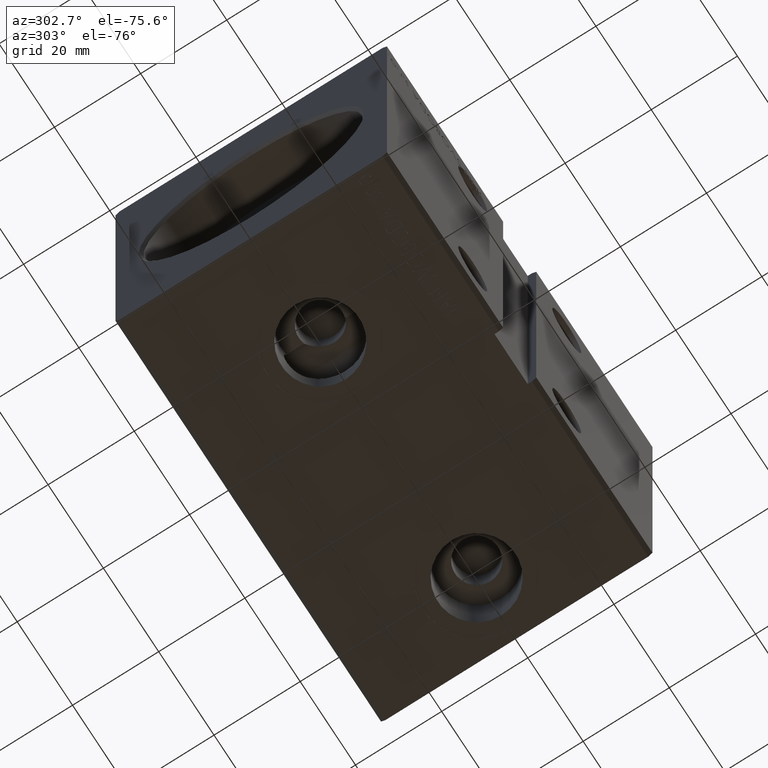
[diagram: clean part render]
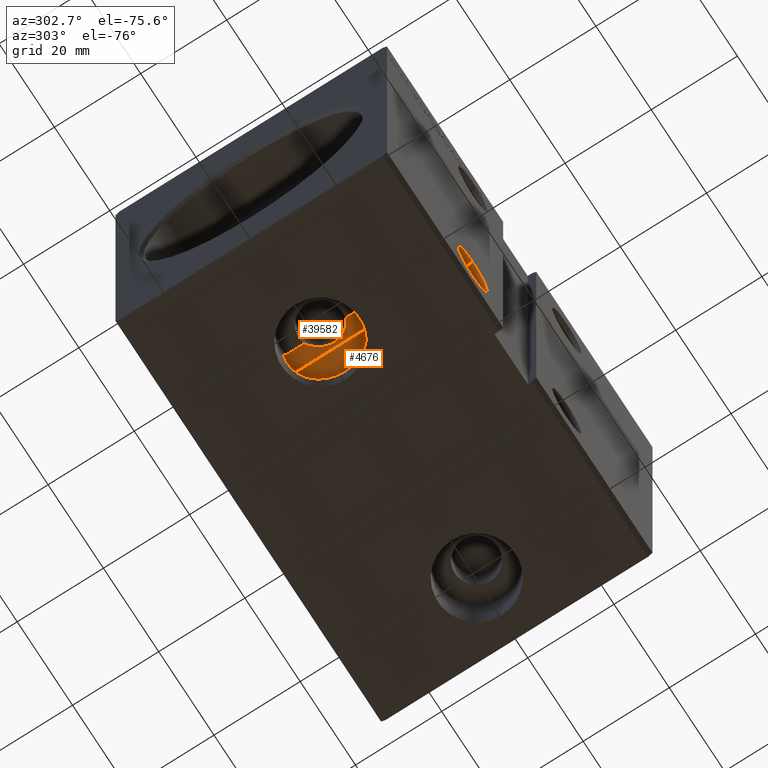
[diagram: same view with one multi-face feature highlighted, each face labeled with its STEP entity id]
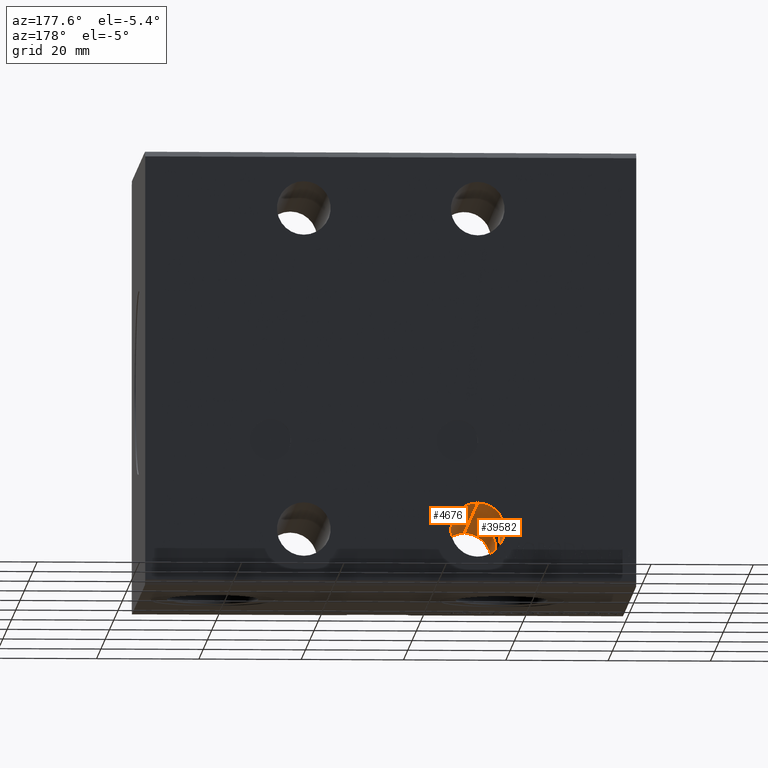
[diagram: same view with one multi-face feature highlighted, each face labeled with its STEP entity id]
A machine part, auxiliary view. The highlighted faces form ONE feature: a constant-radius fillet chain: 2 tangent blend faces with common blend radius 5.25 mm. The faces share edges in the B-rep.
A second angle (auxiliary view) of the same feature is appended — it is thin or edge-on in the first view.
Their STEP definitions:
[1] entity #39582 (Cylinder):
#107 = CARTESIAN_POINT ( 'NONE',  ( 30.01923076923077005, 31.50000000000002842, -36.65757614737546533 ) ) ;
#438 = DIRECTION ( 'NONE',  ( 0.000000000000000000, 0.000000000000000000, 1.000000000000000000 ) ) ;
#533 = CARTESIAN_POINT ( 'NONE',  ( 31.00000000000000000, 31.50000000000002842, -36.75000000000000000 ) ) ;
#827 = CARTESIAN_POINT ( 'NONE',  ( 25.89996466578583068, -8.955161705851407916, -32.76919166794407801 ) ) ;
#1039 = CARTESIAN_POINT ( 'NONE',  ( 31.00000000000000355, -6.708203932499375632, -36.75000000000000000 ) ) ;
#1185 = EDGE_CURVE ( 'NONE', #40813, #38240, #5986, .T. ) ;
#1246 = CARTESIAN_POINT ( 'NONE',  ( 25.74722821237686787, -8.968927506611988676, -31.32945938997362845 ) ) ;
#1340 = CARTESIAN_POINT ( 'NONE',  ( 28.41882955459709237, -3.651150385358644446, -26.92696919744126305 ) ) ;
#1448 = CARTESIAN_POINT ( 'NONE',  ( 26.07193313090176190, -8.936447640893442568, -29.67364151117363846 ) ) ;
#1472 = CARTESIAN_POINT ( 'NONE',  ( 29.05818824000350276, 31.50000000000002842, -36.37769075370089666 ) ) ;
#1490 = VERTEX_POINT ( 'NONE', #32534 ) ;
#1555 = EDGE_CURVE ( 'NONE', #39764, #33113, #7179, .T. ) ;
#1621 = VECTOR ( 'NONE', #7904, 1000.000000000000000 ) ;
#1668 = CARTESIAN_POINT ( 'NONE',  ( 30.24930895320776969, -7.325898449108809274, -36.71209383333225418 ) ) ;
#1691 = CARTESIAN_POINT ( 'NONE',  ( 31.00000000000000000, -31.50000000000000000, -36.75000000000000711 ) ) ;
#1983 = CARTESIAN_POINT ( 'NONE',  ( 29.15896175583688432, -2.790872282961959883, -26.58087485951287476 ) ) ;
#2068 = VERTEX_POINT ( 'NONE', #1472 ) ;
#2123 = VERTEX_POINT ( 'NONE', #4680 ) ;
#2443 = CARTESIAN_POINT ( 'NONE',  ( 29.15698368089221049, 2.782179957065887166, -26.58329660562357688 ) ) ;
#2588 = VERTEX_POINT ( 'NONE', #15891 ) ;
#2793 = EDGE_CURVE ( 'NONE', #38202, #3186, #3978, .T. ) ;
#2833 = CARTESIAN_POINT ( 'NONE',  ( 25.74743895749521272, 8.968909844459643566, -31.32312102305840540 ) ) ;
#2923 = VERTEX_POINT ( 'NONE', #31692 ) ;
#3047 = CARTESIAN_POINT ( 'NONE',  ( 30.99999999999999645, 6.708203932499371192, -36.75000000000000000 ) ) ;
#3166 = EDGE_CURVE ( 'NONE', #39764, #40813, #33349, .T. ) ;
#3186 = VERTEX_POINT ( 'NONE', #9635 ) ;
#3206 = CARTESIAN_POINT ( 'NONE',  ( 26.49750069405890684, 8.874541772468765188, -28.80000000000000782 ) ) ;
#3444 = VERTEX_POINT ( 'NONE', #34092 ) ;
#3630 = CARTESIAN_POINT ( 'NONE',  ( 31.00000000000000355, -6.708203932499375632, -36.75000000000000000 ) ) ;
#3670 = CARTESIAN_POINT ( 'NONE',  ( 26.73149616864455069, 31.30000000000001492, -34.55652990198097285 ) ) ;
#3695 = ORIENTED_EDGE ( 'NONE', *, *, #5761, .F. ) ;
#3978 = B_SPLINE_CURVE_WITH_KNOTS ( 'NONE', 3,
 ( #32439, #5625, #29029, #41799, #38617, #42012, #9440, #15839, #2443, #35220, #35640, #6256, #38825, #12224, #32019, #32232, #22023, #9654, #29232, #22653 ),
 .UNSPECIFIED., .F., .F.,
 ( 4, 2, 2, 2, 2, 2, 2, 2, 2, 4 ),
 ( 0.007095045698600546680, 0.007982129965585131950, 0.008869214232569715486, 0.009756298499554300757, 0.01019984063304659079, 0.01064338276653888082, 0.01153046703352345742, 0.01241755130050803402, 0.01330463556749261061, 0.01419171983447718548 ),
 .UNSPECIFIED. ) ;
#4034 = DIRECTION ( 'NONE',  ( -2.440028945803348379E-14, -1.000000000000000000, 9.345934926773151265E-13 ) ) ;
#4296 = AXIS2_PLACEMENT_3D ( 'NONE', #33926, #33720, #17539 ) ;
#4330 = VERTEX_POINT ( 'NONE', #26002 ) ;
#4331 = DIRECTION ( 'NONE',  ( 0.000000000000000000, 0.000000000000000000, 1.000000000000000000 ) ) ;
#4376 = EDGE_CURVE ( 'NONE', #16737, #34786, #9584, .T. ) ;
#4453 = CARTESIAN_POINT ( 'NONE',  ( 25.75372325283838038, -8.968384017110535567, -31.81189075765247054 ) ) ;
#4680 = CARTESIAN_POINT ( 'NONE',  ( 26.49750069405890684, -8.874541772468772294, -28.80000000000000782 ) ) ;
#4867 = CARTESIAN_POINT ( 'NONE',  ( 28.23807739298709762, -8.399756502165276473, -35.97073210325171289 ) ) ;
#5121 = CARTESIAN_POINT ( 'NONE',  ( 31.00000000000000000, 31.50000000000002842, -31.50000000000000000 ) ) ;
#5548 = VECTOR ( 'NONE', #20415, 1000.000000000000000 ) ;
#5625 = CARTESIAN_POINT ( 'NONE',  ( 29.99999999999999289, 0.2991639797857725824, -26.34611796797790717 ) ) ;
#5761 = EDGE_CURVE ( 'NONE', #30075, #30916, #33136, .T. ) ;
#5818 = CARTESIAN_POINT ( 'NONE',  ( 30.81943096294466145, 6.869709789094343044, -36.75000000000000711 ) ) ;
#5986 = LINE ( 'NONE', #12370, #38095 ) ;
#6073 = B_SPLINE_CURVE_WITH_KNOTS ( 'NONE', 3,
 ( #28585, #25617, #41562, #15609, #38596, #6447, #2833, #34985, #32209, #28794, #12836, #18599, #19011, #38800, #21782, #41776, #9628, #12625, #6234, #9418, #19227, #22626, #12413, #21997, #28175, #35197, #5818, #3047 ),
 .UNSPECIFIED., .F., .F.,
 ( 4, 2, 2, 2, 2, 2, 2, 2, 2, 2, 2, 2, 2, 4 ),
 ( 0.000000000000000000, 0.001444887012153027450, 0.002167330518229541175, 0.002889774024306054900, 0.003612217530382568192, 0.004334661036459082351, 0.005057104542535596076, 0.005779548048612109801, 0.006501991554688623526, 0.007224435060765136384, 0.008669322072918175109, 0.01011420908507121470, 0.01083665259114773710, 0.01155909609722425777 ),
 .UNSPECIFIED. ) ;
#6234 = CARTESIAN_POINT ( 'NONE',  ( 27.31354863073057615, 8.699494223755541711, -35.24551239957317961 ) ) ;
#6256 = CARTESIAN_POINT ( 'NONE',  ( 28.62202982040651378, 3.458611580795821538, -26.81501807858009911 ) ) ;
#6283 = EDGE_CURVE ( 'NONE', #32873, #11658, #29358, .T. ) ;
#6406 = EDGE_CURVE ( 'NONE', #24703, #3186, #27217, .T. ) ;
#6447 = CARTESIAN_POINT ( 'NONE',  ( 25.76103857670775099, 8.967817082740232593, -31.08260328626986890 ) ) ;
#6779 = ORIENTED_EDGE ( 'NONE', *, *, #6406, .F. ) ;
#6804 = CARTESIAN_POINT ( 'NONE',  ( 31.00000000000000000, 31.30000000000536531, -31.50000000000000000 ) ) ;
#7057 = LINE ( 'NONE', #20265, #16106 ) ;
#7064 = DIRECTION ( 'NONE',  ( -0.000000000000000000, 1.000000000000000000, -0.000000000000000000 ) ) ;
#7130 = LINE ( 'NONE', #533, #30009 ) ;
#7179 = LINE ( 'NONE', #17394, #35371 ) ;
#7200 = EDGE_CURVE ( 'NONE', #3444, #4330, #12469, .T. ) ;
#7515 = EDGE_CURVE ( 'NONE', #41643, #28717, #40309, .T. ) ;
#7630 = CARTESIAN_POINT ( 'NONE',  ( 28.43412535841691735, -8.321945179393640757, -36.08575837259161290 ) ) ;
#7847 = CARTESIAN_POINT ( 'NONE',  ( 26.26149604897316792, -8.911664535538793785, -29.22667452789639952 ) ) ;
#7904 = DIRECTION ( 'NONE',  ( 0.000000000000000000, 1.000000000000000000, 5.507058653894625853E-17 ) ) ;
#7943 = CARTESIAN_POINT ( 'NONE',  ( 26.64952836027442373, -4.722758312874097086, -28.54647982902992354 ) ) ;
#8057 = CARTESIAN_POINT ( 'NONE',  ( 27.85677689118285727, -8.536971377054367593, -35.71139056777833787 ) ) ;
#8208 = AXIS2_PLACEMENT_3D ( 'NONE', #19618, #26423, #438 ) ;
#8266 = EDGE_CURVE ( 'NONE', #3444, #2068, #20991, .T. ) ;
#8362 = CARTESIAN_POINT ( 'NONE',  ( 29.45659440716098487, -2.285759671614777222, -26.47953058566860918 ) ) ;
#8458 = EDGE_CURVE ( 'NONE', #1490, #38202, #41813, .T. ) ;
#8526 = DIRECTION ( 'NONE',  ( -0.000000000000000000, 1.000000000000000000, -0.000000000000000000 ) ) ;
#8574 = CARTESIAN_POINT ( 'NONE',  ( 28.61626550162777605, -3.455708101334369786, -26.82101918889994252 ) ) ;
#8828 = CARTESIAN_POINT ( 'NONE',  ( 29.05818824000350276, 31.50000000000002842, -36.37769075370089666 ) ) ;
#8861 = CARTESIAN_POINT ( 'NONE',  ( 26.37013785459769011, 31.50000000000002842, -33.97525281831385513 ) ) ;
#9046 = CIRCLE ( 'NONE', #11083, 5.249999999999997335 ) ;
#9297 = ORIENTED_EDGE ( 'NONE', *, *, #4376, .T. ) ;
#9418 = CARTESIAN_POINT ( 'NONE',  ( 27.84283381702255866, 8.547112024095509852, -35.72136814628185419 ) ) ;
#9440 = CARTESIAN_POINT ( 'NONE',  ( 29.45704033046236603, 2.284577362002219836, -26.47944112662648308 ) ) ;
#9584 = CIRCLE ( 'NONE', #8208, 5.249999999999997335 ) ;
#9628 = CARTESIAN_POINT ( 'NONE',  ( 26.83667235110097593, 8.812016512419484471, -34.70721730449953668 ) ) ;
#9635 = CARTESIAN_POINT ( 'NONE',  ( 26.49750069405890684, 4.770481282983204174, -28.80000000000000782 ) ) ;
#9654 = CARTESIAN_POINT ( 'NONE',  ( 26.82073475538405916, 4.661197260941108311, -28.30947969190710367 ) ) ;
#9842 = CARTESIAN_POINT ( 'NONE',  ( 26.73149616864455425, 31.50000000000002842, -34.55652990198097996 ) ) ;
#9995 = VECTOR ( 'NONE', #7064, 1000.000000000000000 ) ;
#10058 = EDGE_CURVE ( 'NONE', #25903, #2588, #41750, .T. ) ;
#10406 = AXIS2_PLACEMENT_3D ( 'NONE', #20305, #17725, #4331 ) ;
#10491 = AXIS2_PLACEMENT_3D ( 'NONE', #17975, #37554, #11588 ) ;
#10593 = VECTOR ( 'NONE', #41021, 1000.000000000000000 ) ;
#10603 = ORIENTED_EDGE ( 'NONE', *, *, #1185, .T. ) ;
#10625 = CARTESIAN_POINT ( 'NONE',  ( 27.67049269457908878, -8.596656590935701558, -35.56615540592680702 ) ) ;
#10832 = CARTESIAN_POINT ( 'NONE',  ( 25.77350529104820609, -8.966773415042174733, -32.05195013464607712 ) ) ;
#11083 = AXIS2_PLACEMENT_3D ( 'NONE', #25287, #31038, #24868 ) ;
#11218 = CARTESIAN_POINT ( 'NONE',  ( 30.99999999999999645, 6.708203932499371192, -36.75000000000000000 ) ) ;
#11336 = EDGE_CURVE ( 'NONE', #18370, #11658, #9046, .T. ) ;
#11356 = AXIS2_PLACEMENT_3D ( 'NONE', #17614, #27616, #28040 ) ;
#11464 = CARTESIAN_POINT ( 'NONE',  ( 26.49750069405890684, 31.50000000000002842, -28.80000000000000782 ) ) ;
#11588 = DIRECTION ( 'NONE',  ( -6.608470384673553982E-16, 0.000000000000000000, -1.000000000000000000 ) ) ;
#11603 = AXIS2_PLACEMENT_3D ( 'NONE', #12842, #38392, #25832 ) ;
#11658 = VERTEX_POINT ( 'NONE', #25866 ) ;
#11724 = DIRECTION ( 'NONE',  ( 0.000000000000000000, 0.000000000000000000, 1.000000000000000000 ) ) ;
#12224 = CARTESIAN_POINT ( 'NONE',  ( 28.01680952870440677, 3.996268185437286125, -27.17322062541719063 ) ) ;
#12361 = EDGE_CURVE ( 'NONE', #18370, #2923, #16124, .T. ) ;
#12370 = CARTESIAN_POINT ( 'NONE',  ( 31.00000000000000000, 31.50000000000002842, -26.25000000000000355 ) ) ;
#12396 = ORIENTED_EDGE ( 'NONE', *, *, #8266, .F. ) ;
#12413 = CARTESIAN_POINT ( 'NONE',  ( 29.44634784065305411, 7.839537401015193474, -36.53179089978613092 ) ) ;
#12448 = CARTESIAN_POINT ( 'NONE',  ( 28.77023947120050096, 31.50000000000002842, -36.25296412612254215 ) ) ;
#12469 = CIRCLE ( 'NONE', #29446, 5.249999999999997335 ) ;
#12625 = CARTESIAN_POINT ( 'NONE',  ( 27.14506820985804580, 8.742063984867002091, -35.07197996127096928 ) ) ;
#12836 = CARTESIAN_POINT ( 'NONE',  ( 25.89912232049271168, 8.955240849312712470, -32.76549282730099577 ) ) ;
#12842 = CARTESIAN_POINT ( 'NONE',  ( 31.00000000000000000, 31.50000000000002842, -31.50000000000000000 ) ) ;
#13137 = EDGE_CURVE ( 'NONE', #24703, #30916, #6073, .T. ) ;
#13377 = DIRECTION ( 'NONE',  ( 0.000000000000000000, -1.000000000000000000, 0.000000000000000000 ) ) ;
#13541 = ORIENTED_EDGE ( 'NONE', *, *, #37381, .F. ) ;
#13827 = CARTESIAN_POINT ( 'NONE',  ( 29.04143945278135774, -8.044889746325818436, -36.37579254195416212 ) ) ;
#14034 = CARTESIAN_POINT ( 'NONE',  ( 26.30875158037759576, -8.908254618465862862, -33.90625711829992639 ) ) ;
#14237 = CARTESIAN_POINT ( 'NONE',  ( 26.82917002613189084, -8.816119784920115166, -34.72522284238812063 ) ) ;
#14550 = CARTESIAN_POINT ( 'NONE',  ( 28.31632952916747925, -3.744324297697766202, -26.98611855248067926 ) ) ;
#14691 = CARTESIAN_POINT ( 'NONE',  ( 31.00000000000000000, -31.50000000000000000, -31.50000000000000711 ) ) ;
#15142 = LINE ( 'NONE', #37288, #1621 ) ;
#15236 = ORIENTED_EDGE ( 'NONE', *, *, #11336, .T. ) ;
#15298 = VECTOR ( 'NONE', #38281, 1000.000000000000000 ) ;
#15386 = ORIENTED_EDGE ( 'NONE', *, *, #40928, .T. ) ;
#15609 = CARTESIAN_POINT ( 'NONE',  ( 25.86909471257110127, 8.958165189321691813, -30.36202690353421474 ) ) ;
#15839 = CARTESIAN_POINT ( 'NONE',  ( 29.23595685117473764, 2.660412583147796273, -26.55462733913916296 ) ) ;
#15891 = CARTESIAN_POINT ( 'NONE',  ( 28.26923076923077360, 31.30000000000001492, -35.98390448251119267 ) ) ;
#15956 = ORIENTED_EDGE ( 'NONE', *, *, #41763, .T. ) ;
#16106 = VECTOR ( 'NONE', #41974, 1000.000000000000000 ) ;
#16124 = LINE ( 'NONE', #33341, #38324 ) ;
#16535 = VECTOR ( 'NONE', #33970, 1000.000000000000000 ) ;
#16548 = CIRCLE ( 'NONE', #10406, 5.249999999999997335 ) ;
#16568 = CARTESIAN_POINT ( 'NONE',  ( 28.53846153846154010, 31.30000000000001492, -36.13716814471578687 ) ) ;
#16668 = EDGE_CURVE ( 'NONE', #33113, #35237, #22097, .T. ) ;
#16698 = CARTESIAN_POINT ( 'NONE',  ( 26.49750069405890684, -4.770481282983208615, -28.80000000000000782 ) ) ;
#16737 = VERTEX_POINT ( 'NONE', #17853 ) ;
#16872 = EDGE_CURVE ( 'NONE', #41643, #4330, #34458, .T. ) ;
#16951 = DIRECTION ( 'NONE',  ( -0.000000000000000000, -1.000000000000000000, -5.507058653894625853E-17 ) ) ;
#17009 = CARTESIAN_POINT ( 'NONE',  ( 26.49750069405890684, -8.874541772468772294, -28.80000000000000782 ) ) ;
#17202 = ORIENTED_EDGE ( 'NONE', *, *, #12361, .F. ) ;
#17394 = CARTESIAN_POINT ( 'NONE',  ( 26.37013785459911119, 31.30000000000001492, -33.97525281831364907 ) ) ;
#17451 = CARTESIAN_POINT ( 'NONE',  ( 31.00000000000000000, -31.50000000000000000, -26.25000000000001066 ) ) ;
#17539 = DIRECTION ( 'NONE',  ( 0.000000000000000000, 0.000000000000000000, 1.000000000000000000 ) ) ;
#17614 = CARTESIAN_POINT ( 'NONE',  ( 31.00000000000000000, 31.50000000000002842, -31.50000000000000000 ) ) ;
#17679 = DIRECTION ( 'NONE',  ( -0.000000000000000000, 1.000000000000000000, 5.507058653894625853E-17 ) ) ;
#17725 = DIRECTION ( 'NONE',  ( -0.000000000000000000, 1.000000000000000000, 5.507058653894625853E-17 ) ) ;
#17853 = CARTESIAN_POINT ( 'NONE',  ( 28.26923076923077360, 31.50000000000002842, -35.98390448251119267 ) ) ;
#17975 = CARTESIAN_POINT ( 'NONE',  ( 31.00000000000000000, 31.30000000000001492, -31.50000000000000000 ) ) ;
#18048 = ORIENTED_EDGE ( 'NONE', *, *, #10058, .T. ) ;
#18170 = CARTESIAN_POINT ( 'NONE',  ( 28.98782428620227591, -3.029458273881169728, -26.64668372564559107 ) ) ;
#18370 = VERTEX_POINT ( 'NONE', #26931 ) ;
#18599 = CARTESIAN_POINT ( 'NONE',  ( 26.03630233281966255, 8.940404749864503842, -33.22688467075091268 ) ) ;
#19011 = CARTESIAN_POINT ( 'NONE',  ( 26.12063476503579551, 8.930534970410610285, -33.45272867001026640 ) ) ;
#19227 = CARTESIAN_POINT ( 'NONE',  ( 28.22632520516374655, 8.413544700029659040, -35.98064150702575859 ) ) ;
#19618 = CARTESIAN_POINT ( 'NONE',  ( 31.00000000000000000, 31.50000000000002842, -31.50000000000000000 ) ) ;
#19797 = CARTESIAN_POINT ( 'NONE',  ( 30.01923076923077005, 31.50000000000002842, -36.65757614737546533 ) ) ;
#19899 = ORIENTED_EDGE ( 'NONE', *, *, #20137, .T. ) ;
#20137 = EDGE_CURVE ( 'NONE', #30075, #2923, #37805, .T. ) ;
#20265 = CARTESIAN_POINT ( 'NONE',  ( 26.49750069405890684, 31.50000000000002842, -28.80000000000000782 ) ) ;
#20305 = CARTESIAN_POINT ( 'NONE',  ( 31.00000000000000000, 31.50000000000002842, -31.50000000000000000 ) ) ;
#20362 = CARTESIAN_POINT ( 'NONE',  ( 31.00000000000000000, 31.50000000000002842, -36.75000000000000000 ) ) ;
#20415 = DIRECTION ( 'NONE',  ( -0.000000000000000000, -1.000000000000000000, -5.507058653894625853E-17 ) ) ;
#20632 = CARTESIAN_POINT ( 'NONE',  ( 28.83493641473060265, -8.145013888332435670, -36.28804680426723195 ) ) ;
#20838 = CARTESIAN_POINT ( 'NONE',  ( 29.65126828000515502, -7.708547952152757787, -36.57790926871268056 ) ) ;
#20938 = CARTESIAN_POINT ( 'NONE',  ( 26.81937877258079439, -4.661594112404773504, -28.31159668081847158 ) ) ;
#20991 = LINE ( 'NONE', #8828, #16535 ) ;
#21150 = CARTESIAN_POINT ( 'NONE',  ( 28.71184795432811399, -3.352950157197860381, -26.77378399706326917 ) ) ;
#21363 = CARTESIAN_POINT ( 'NONE',  ( 27.39068535175034924, -4.397951483381331350, -27.67800335474932893 ) ) ;
#21572 = CARTESIAN_POINT ( 'NONE',  ( 29.78967411817036393, -1.465188028145322674, -26.39030476004532844 ) ) ;
#21750 = EDGE_CURVE ( 'NONE', #1490, #2123, #7057, .T. ) ;
#21782 = CARTESIAN_POINT ( 'NONE',  ( 26.43789070559157395, 8.885354559177336853, -34.10908283537963115 ) ) ;
#21997 = CARTESIAN_POINT ( 'NONE',  ( 30.05021719370474642, 7.453347921699931433, -36.66749226353752533 ) ) ;
#22023 = CARTESIAN_POINT ( 'NONE',  ( 27.19536718173253931, 4.496909815889133633, -27.87088896017630546 ) ) ;
#22078 = ORIENTED_EDGE ( 'NONE', *, *, #2793, .T. ) ;
#22097 = CIRCLE ( 'NONE', #26841, 5.249999999999997335 ) ;
#22539 = VECTOR ( 'NONE', #16951, 1000.000000000000000 ) ;
#22626 = CARTESIAN_POINT ( 'NONE',  ( 29.03832284472632708, 8.055362024802702692, -36.39093476959868667 ) ) ;
#22653 = CARTESIAN_POINT ( 'NONE',  ( 26.49750069405890684, 4.770481282983204174, -28.80000000000000782 ) ) ;
#22685 = EDGE_CURVE ( 'NONE', #35237, #34786, #36025, .T. ) ;
#22885 = ORIENTED_EDGE ( 'NONE', *, *, #13137, .T. ) ;
#22975 = EDGE_CURVE ( 'NONE', #24824, #2123, #24252, .T. ) ;
#24036 = CARTESIAN_POINT ( 'NONE',  ( 26.73149616864455069, 31.30000000000261196, -34.55652990198097285 ) ) ;
#24138 = CARTESIAN_POINT ( 'NONE',  ( 29.58315898828715262, -2.020496920110043781, -26.44367369200022821 ) ) ;
#24161 = ORIENTED_EDGE ( 'NONE', *, *, #7515, .T. ) ;
#24222 = FACE_OUTER_BOUND ( 'NONE', #30506, .T. ) ;
#24252 = B_SPLINE_CURVE_WITH_KNOTS ( 'NONE', 3,
 ( #1039, #24454, #1668, #20838, #39782, #13827, #20632, #7630, #4867, #8057, #10625, #37019, #14237, #14034, #33618, #827, #26816, #10832, #4453, #1246, #27641, #37437, #34247, #27023, #1448, #7847, #33825, #17009 ),
 .UNSPECIFIED., .F., .F.,
 ( 4, 2, 2, 2, 2, 2, 2, 2, 2, 2, 2, 2, 2, 4 ),
 ( 0.02679966305243531438, 0.02824308992174744473, 0.02896480335640351511, 0.02968651679105958202, 0.03040823022571565240, 0.03112994366037172278, 0.03257337052968384966, 0.03401679739899597654, 0.03473851083365203651, 0.03546022426830810342, 0.03618193770296416339, 0.03690365113762022337, 0.03762536457227629028, 0.03834707800693235025 ),
 .UNSPECIFIED. ) ;
#24395 = DIRECTION ( 'NONE',  ( 0.000000000000000000, 1.000000000000000000, 5.507058653894625853E-17 ) ) ;
#24427 = LINE ( 'NONE', #27196, #10593 ) ;
#24454 = CARTESIAN_POINT ( 'NONE',  ( 30.64086623680768895, -7.029422935504705094, -36.75000000000000000 ) ) ;
#24482 = DIRECTION ( 'NONE',  ( 0.000000000000000000, -1.000000000000000000, -0.000000000000000000 ) ) ;
#24585 = CARTESIAN_POINT ( 'NONE',  ( 31.00000000000000000, 31.50000000000002842, -26.25000000000000355 ) ) ;
#24703 = VERTEX_POINT ( 'NONE', #3206 ) ;
#24774 = CARTESIAN_POINT ( 'NONE',  ( 27.18857850627804140, -4.500080322481168515, -27.87831865425598110 ) ) ;
#24824 = VERTEX_POINT ( 'NONE', #3630 ) ;
#24868 = DIRECTION ( 'NONE',  ( 6.608470384673553982E-16, 0.000000000000000000, -1.000000000000000000 ) ) ;
#25287 = CARTESIAN_POINT ( 'NONE',  ( 31.00000000000000000, 31.30000000000001492, -31.50000000000000000 ) ) ;
#25617 = CARTESIAN_POINT ( 'NONE',  ( 26.24710392329080122, 8.916794020261276543, -29.21755973577528209 ) ) ;
#25832 = DIRECTION ( 'NONE',  ( 0.000000000000000000, 0.000000000000000000, 1.000000000000000000 ) ) ;
#25866 = CARTESIAN_POINT ( 'NONE',  ( 30.01923076923077005, 31.30000000000001492, -36.65757614737546533 ) ) ;
#25903 = VERTEX_POINT ( 'NONE', #16568 ) ;
#25952 = VECTOR ( 'NONE', #26808, 1000.000000000000000 ) ;
#26002 = CARTESIAN_POINT ( 'NONE',  ( 28.77023947120050096, 31.30000000000001492, -36.25296412612254215 ) ) ;
#26084 = ORIENTED_EDGE ( 'NONE', *, *, #6283, .F. ) ;
#26423 = DIRECTION ( 'NONE',  ( -0.000000000000000000, 1.000000000000000000, 5.507058653894625853E-17 ) ) ;
#26808 = DIRECTION ( 'NONE',  ( -0.000000000000000000, -1.000000000000000000, -5.507058653894625853E-17 ) ) ;
#26816 = CARTESIAN_POINT ( 'NONE',  ( 25.84630896075627504, -8.960195146029484192, -32.52974004770903349 ) ) ;
#26841 = AXIS2_PLACEMENT_3D ( 'NONE', #6804, #4034, #29578 ) ;
#26931 = CARTESIAN_POINT ( 'NONE',  ( 30.28846153846154010, 31.30000000000001492, -36.70155871040127948 ) ) ;
#27023 = CARTESIAN_POINT ( 'NONE',  ( 25.99343984604974267, -8.945224431769407403, -29.90163675589788284 ) ) ;
#27196 = CARTESIAN_POINT ( 'NONE',  ( 28.26923076923077360, 31.50000000000002842, -35.98390448251119267 ) ) ;
#27217 = LINE ( 'NONE', #11464, #5548 ) ;
#27337 = CARTESIAN_POINT ( 'NONE',  ( 26.37013785459792103, 31.30000000000316618, -33.97525281831428856 ) ) ;
#27616 = DIRECTION ( 'NONE',  ( -0.000000000000000000, -1.000000000000000000, -5.507058653894625853E-17 ) ) ;
#27641 = CARTESIAN_POINT ( 'NONE',  ( 25.76075064285402760, -8.967841856512247745, -31.08544025010238698 ) ) ;
#27822 = CYLINDRICAL_SURFACE ( 'NONE', #11356, 5.249999999999997335 ) ;
#28039 = ORIENTED_EDGE ( 'NONE', *, *, #21750, .F. ) ;
#28040 = DIRECTION ( 'NONE',  ( 0.000000000000000000, 0.000000000000000000, -1.000000000000000000 ) ) ;
#28175 = CARTESIAN_POINT ( 'NONE',  ( 30.24907144778096679, 7.314734781685882758, -36.69960489169272222 ) ) ;
#28575 = CARTESIAN_POINT ( 'NONE',  ( 28.53846153846154010, 31.50000000000002842, -36.13716814471578687 ) ) ;
#28585 = CARTESIAN_POINT ( 'NONE',  ( 26.49750069405890684, 8.874541772468765188, -28.80000000000000782 ) ) ;
#28717 = VERTEX_POINT ( 'NONE', #28575 ) ;
#28718 = ORIENTED_EDGE ( 'NONE', *, *, #31228, .F. ) ;
#28794 = CARTESIAN_POINT ( 'NONE',  ( 25.84627265859376521, 8.960199318950103020, -32.52994533513125219 ) ) ;
#29029 = CARTESIAN_POINT ( 'NONE',  ( 29.97327150447224753, 0.5946449343272462995, -26.35109958764261862 ) ) ;
#29232 = CARTESIAN_POINT ( 'NONE',  ( 26.64973999800410098, 4.722691877722519749, -28.54612690357399885 ) ) ;
#29358 = LINE ( 'NONE', #19797, #25952 ) ;
#29446 = AXIS2_PLACEMENT_3D ( 'NONE', #37911, #8526, #34714 ) ;
#29578 = DIRECTION ( 'NONE',  ( -7.269317423140909676E-15, 9.344377123928406267E-13, 1.000000000000000000 ) ) ;
#30009 = VECTOR ( 'NONE', #39693, 1000.000000000000000 ) ;
#30075 = VERTEX_POINT ( 'NONE', #40357 ) ;
#30506 = EDGE_LOOP ( 'NONE', ( #38780, #10603, #15386, #28718, #34279, #28039, #40648, #22078, #6779, #22885, #3695, #19899, #17202, #15236, #26084, #15956, #12396, #33702, #41913, #24161, #13541, #18048, #36070, #9297, #40171, #35742, #35215 ) ) ;
#30916 = VERTEX_POINT ( 'NONE', #11218 ) ;
#31038 = DIRECTION ( 'NONE',  ( -0.000000000000000000, 1.000000000000000000, -0.000000000000000000 ) ) ;
#31228 = EDGE_CURVE ( 'NONE', #24824, #40114, #7130, .T. ) ;
#31366 = CARTESIAN_POINT ( 'NONE',  ( 29.86877646762530247, -1.175733490243123791, -26.37304288677380981 ) ) ;
#31692 = CARTESIAN_POINT ( 'NONE',  ( 30.28846153846154010, 31.50000000000002842, -36.70155871040127948 ) ) ;
#32019 = CARTESIAN_POINT ( 'NONE',  ( 27.80334595272942977, 4.147126712941839877, -27.32673810802236503 ) ) ;
#32209 = CARTESIAN_POINT ( 'NONE',  ( 25.77310634214454765, 8.966808564463343956, -32.04888577353326440 ) ) ;
#32232 = CARTESIAN_POINT ( 'NONE',  ( 27.39394938017803227, 4.396181851223340153, -27.67493649147550627 ) ) ;
#32439 = CARTESIAN_POINT ( 'NONE',  ( 30.00000000000000355, -2.053430364249696894E-15, -26.34611796797792849 ) ) ;
#32534 = CARTESIAN_POINT ( 'NONE',  ( 26.49750069405890684, -4.770481282983208615, -28.80000000000000782 ) ) ;
#32834 = AXIS2_PLACEMENT_3D ( 'NONE', #14691, #24482, #34485 ) ;
#32873 = VERTEX_POINT ( 'NONE', #107 ) ;
#33067 = AXIS2_PLACEMENT_3D ( 'NONE', #5121, #17679, #11724 ) ;
#33113 = VERTEX_POINT ( 'NONE', #27337 ) ;
#33136 = LINE ( 'NONE', #20362, #22539 ) ;
#33341 = CARTESIAN_POINT ( 'NONE',  ( 30.28846153846154010, 31.50000000000002842, -36.70155871040127948 ) ) ;
#33349 = CIRCLE ( 'NONE', #11603, 5.249999999999997335 ) ;
#33618 = CARTESIAN_POINT ( 'NONE',  ( 26.10783757130895211, -8.932643854203409006, -33.46572591480878600 ) ) ;
#33702 = ORIENTED_EDGE ( 'NONE', *, *, #7200, .T. ) ;
#33720 = DIRECTION ( 'NONE',  ( -0.000000000000000000, 1.000000000000000000, 5.507058653894625853E-17 ) ) ;
#33825 = CARTESIAN_POINT ( 'NONE',  ( 26.37235108209189249, -8.895659666280851141, -29.00869853371126084 ) ) ;
#33926 = CARTESIAN_POINT ( 'NONE',  ( 31.00000000000000000, 31.50000000000002842, -31.50000000000000000 ) ) ;
#33970 = DIRECTION ( 'NONE',  ( 0.000000000000000000, 1.000000000000000000, 5.507058653894625853E-17 ) ) ;
#34092 = CARTESIAN_POINT ( 'NONE',  ( 29.05818824000350276, 31.30000000000001492, -36.37769075370089666 ) ) ;
#34247 = CARTESIAN_POINT ( 'NONE',  ( 25.86821249017240021, -8.958245918390064233, -30.36634811816124824 ) ) ;
#34279 = ORIENTED_EDGE ( 'NONE', *, *, #22975, .T. ) ;
#34346 = CARTESIAN_POINT ( 'NONE',  ( 28.00792353993931982, -4.003051329587349549, -27.17925583605542528 ) ) ;
#34458 = LINE ( 'NONE', #41049, #15298 ) ;
#34485 = DIRECTION ( 'NONE',  ( 0.000000000000000000, 0.000000000000000000, 1.000000000000000000 ) ) ;
#34560 = CARTESIAN_POINT ( 'NONE',  ( 30.00000000000000355, -2.053430364249696894E-15, -26.34611796797792849 ) ) ;
#34714 = DIRECTION ( 'NONE',  ( 2.643388153869421593E-15, 0.000000000000000000, -1.000000000000000000 ) ) ;
#34763 = CARTESIAN_POINT ( 'NONE',  ( 29.97337673488290832, -0.5940180003220195681, -26.35107772513709889 ) ) ;
#34786 = VERTEX_POINT ( 'NONE', #9842 ) ;
#34985 = CARTESIAN_POINT ( 'NONE',  ( 25.75334898232610925, 8.968415361927371876, -31.80551068142425208 ) ) ;
#35197 = CARTESIAN_POINT ( 'NONE',  ( 30.63306164210165505, 7.023297838380313962, -36.74071950802135689 ) ) ;
#35215 = ORIENTED_EDGE ( 'NONE', *, *, #1555, .F. ) ;
#35220 = CARTESIAN_POINT ( 'NONE',  ( 28.98870994959860781, 3.018481667109526700, -26.64970168402740214 ) ) ;
#35237 = VERTEX_POINT ( 'NONE', #24036 ) ;
#35371 = VECTOR ( 'NONE', #13377, 1000.000000000000000 ) ;
#35640 = CARTESIAN_POINT ( 'NONE',  ( 28.89898083456803946, 3.133404214804298871, -26.68766762252914049 ) ) ;
#35742 = ORIENTED_EDGE ( 'NONE', *, *, #16668, .F. ) ;
#35784 = CARTESIAN_POINT ( 'NONE',  ( 30.00000000000000355, -2.053430364249696894E-15, -26.34611796797792849 ) ) ;
#36025 = LINE ( 'NONE', #3670, #9995 ) ;
#36070 = ORIENTED_EDGE ( 'NONE', *, *, #39631, .F. ) ;
#36211 = CIRCLE ( 'NONE', #32834, 5.249999999999997335 ) ;
#37019 = CARTESIAN_POINT ( 'NONE',  ( 27.13869015224802439, -8.749979858822005241, -35.08883560331896945 ) ) ;
#37288 = CARTESIAN_POINT ( 'NONE',  ( 28.53846153846154010, 31.50000000000002842, -36.13716814471578687 ) ) ;
#37325 = CARTESIAN_POINT ( 'NONE',  ( 27.80007667557752882, -4.149328175998679313, -27.32923252815578508 ) ) ;
#37381 = EDGE_CURVE ( 'NONE', #25903, #28717, #15142, .T. ) ;
#37437 = CARTESIAN_POINT ( 'NONE',  ( 25.82147708274876052, -8.962483166318049754, -30.60306410034307589 ) ) ;
#37554 = DIRECTION ( 'NONE',  ( -0.000000000000000000, 1.000000000000000000, -0.000000000000000000 ) ) ;
#37805 = CIRCLE ( 'NONE', #33067, 5.249999999999997335 ) ;
#37911 = CARTESIAN_POINT ( 'NONE',  ( 31.00000000000000000, 31.30000000000001492, -31.50000000000000000 ) ) ;
#38095 = VECTOR ( 'NONE', #38973, 1000.000000000000000 ) ;
#38202 = VERTEX_POINT ( 'NONE', #35784 ) ;
#38240 = VERTEX_POINT ( 'NONE', #17451 ) ;
#38281 = DIRECTION ( 'NONE',  ( -0.000000000000000000, -1.000000000000000000, -5.507058653894625853E-17 ) ) ;
#38324 = VECTOR ( 'NONE', #24395, 1000.000000000000000 ) ;
#38392 = DIRECTION ( 'NONE',  ( -0.000000000000000000, 1.000000000000000000, 5.507058653894625853E-17 ) ) ;
#38596 = CARTESIAN_POINT ( 'NONE',  ( 25.82156328414563973, 8.962474921296497143, -30.60293256035639331 ) ) ;
#38617 = CARTESIAN_POINT ( 'NONE',  ( 29.79041491718346180, 1.462952061037007256, -26.39012414879925217 ) ) ;
#38780 = ORIENTED_EDGE ( 'NONE', *, *, #3166, .T. ) ;
#38800 = CARTESIAN_POINT ( 'NONE',  ( 26.32151240250665580, 8.903026569900523768, -33.89439097788109478 ) ) ;
#38825 = CARTESIAN_POINT ( 'NONE',  ( 28.42526874449954022, 3.652236735258884703, -26.91838411624316052 ) ) ;
#38973 = DIRECTION ( 'NONE',  ( -0.000000000000000000, -1.000000000000000000, -5.507058653894625853E-17 ) ) ;
#39582 = ADVANCED_FACE ( 'NONE', ( #24222 ), #27822, .F. ) ;
#39631 = EDGE_CURVE ( 'NONE', #16737, #2588, #24427, .T. ) ;
#39693 = DIRECTION ( 'NONE',  ( -0.000000000000000000, -1.000000000000000000, -5.507058653894625853E-17 ) ) ;
#39764 = VERTEX_POINT ( 'NONE', #8861 ) ;
#39782 = CARTESIAN_POINT ( 'NONE',  ( 29.44927930858942489, -7.826710516889826330, -36.52041608500015712 ) ) ;
#40114 = VERTEX_POINT ( 'NONE', #1691 ) ;
#40171 = ORIENTED_EDGE ( 'NONE', *, *, #22685, .F. ) ;
#40309 = CIRCLE ( 'NONE', #4296, 5.249999999999997335 ) ;
#40357 = CARTESIAN_POINT ( 'NONE',  ( 31.00000000000000000, 31.50000000000002842, -36.75000000000000000 ) ) ;
#40503 = CARTESIAN_POINT ( 'NONE',  ( 30.00000000000001066, -0.2990953321676085852, -26.34611796797792138 ) ) ;
#40648 = ORIENTED_EDGE ( 'NONE', *, *, #8458, .T. ) ;
#40813 = VERTEX_POINT ( 'NONE', #24585 ) ;
#40928 = EDGE_CURVE ( 'NONE', #38240, #40114, #36211, .T. ) ;
#41021 = DIRECTION ( 'NONE',  ( -0.000000000000000000, -1.000000000000000000, -5.507058653894625853E-17 ) ) ;
#41049 = CARTESIAN_POINT ( 'NONE',  ( 28.77023947120050096, 31.50000000000002842, -36.25296412612254215 ) ) ;
#41562 = CARTESIAN_POINT ( 'NONE',  ( 26.05896699198030930, 8.938388312457252738, -29.66060331601834577 ) ) ;
#41643 = VERTEX_POINT ( 'NONE', #12448 ) ;
#41750 = CIRCLE ( 'NONE', #10491, 5.249999999999997335 ) ;
#41763 = EDGE_CURVE ( 'NONE', #32873, #2068, #16548, .T. ) ;
#41776 = CARTESIAN_POINT ( 'NONE',  ( 26.69509592456035207, 8.839892823448654013, -34.51462358467247071 ) ) ;
#41799 = CARTESIAN_POINT ( 'NONE',  ( 29.86883739943169758, 1.175352897223576276, -26.37303032669605685 ) ) ;
#41813 = B_SPLINE_CURVE_WITH_KNOTS ( 'NONE', 3,
 ( #16698, #7943, #20938, #24774, #21363, #37325, #34346, #14550, #1340, #8574, #21150, #18170, #1983, #8362, #24138, #21572, #31366, #34763, #40503, #34560 ),
 .UNSPECIFIED., .F., .F.,
 ( 4, 2, 2, 2, 2, 2, 2, 2, 2, 4 ),
 ( 0.000000000000000000, 0.0008868807123250628055, 0.001773761424650125611, 0.002660642136975188525, 0.003104082493137723126, 0.003547522849300257727, 0.004434403561625329532, 0.005321284273950402204, 0.006208164986275474008, 0.007095045698600546680 ),
 .UNSPECIFIED. ) ;
#41913 = ORIENTED_EDGE ( 'NONE', *, *, #16872, .F. ) ;
#41974 = DIRECTION ( 'NONE',  ( -0.000000000000000000, -1.000000000000000000, -5.507058653894625853E-17 ) ) ;
#42012 = CARTESIAN_POINT ( 'NONE',  ( 29.58341304387485593, 2.020056603391139571, -26.44359725862418031 ) ) ;
[2] entity #4676 (Cylinder):
#315 = DIRECTION ( 'NONE',  ( -0.000000000000000000, 1.000000000000000000, 5.507058653894625853E-17 ) ) ;
#533 = CARTESIAN_POINT ( 'NONE',  ( 31.00000000000000000, 31.50000000000002842, -36.75000000000000000 ) ) ;
#834 = VECTOR ( 'NONE', #2750, 1000.000000000000000 ) ;
#1065 = ORIENTED_EDGE ( 'NONE', *, *, #5761, .T. ) ;
#1185 = EDGE_CURVE ( 'NONE', #40813, #38240, #5986, .T. ) ;
#1240 = EDGE_CURVE ( 'NONE', #36159, #25500, #16826, .T. ) ;
#1631 = AXIS2_PLACEMENT_3D ( 'NONE', #16966, #29945, #4617 ) ;
#1648 = VERTEX_POINT ( 'NONE', #14199 ) ;
#1691 = CARTESIAN_POINT ( 'NONE',  ( 31.00000000000000000, -31.50000000000000000, -36.75000000000000711 ) ) ;
#1837 = EDGE_CURVE ( 'NONE', #27505, #12557, #39429, .T. ) ;
#2113 = CARTESIAN_POINT ( 'NONE',  ( 33.56410256410256920, 31.50000000000002842, -36.08125288985039703 ) ) ;
#2449 = ORIENTED_EDGE ( 'NONE', *, *, #13953, .T. ) ;
#2643 = CARTESIAN_POINT ( 'NONE',  ( 33.91660223669737917, 1.262665993231838701, -35.86549594116109319 ) ) ;
#2750 = DIRECTION ( 'NONE',  ( -0.000000000000000000, -1.000000000000000000, -5.507058653894625853E-17 ) ) ;
#2789 = AXIS2_PLACEMENT_3D ( 'NONE', #29760, #23381, #36364 ) ;
#2838 = CARTESIAN_POINT ( 'NONE',  ( 31.00000000000000355, -6.708203932499375632, -36.75000000000000000 ) ) ;
#3630 = CARTESIAN_POINT ( 'NONE',  ( 31.00000000000000355, -6.708203932499375632, -36.75000000000000000 ) ) ;
#3799 = CYLINDRICAL_SURFACE ( 'NONE', #2789, 5.249999999999997335 ) ;
#4356 = CARTESIAN_POINT ( 'NONE',  ( 31.06744655756538620, 31.50000000000002842, -36.74956674039606952 ) ) ;
#4617 = DIRECTION ( 'NONE',  ( 0.000000000000000000, 0.000000000000000000, 1.000000000000000000 ) ) ;
#4676 = ADVANCED_FACE ( 'NONE', ( #19776 ), #3799, .F. ) ;
#5293 = DIRECTION ( 'NONE',  ( 0.000000000000000000, 0.000000000000000000, 1.000000000000000000 ) ) ;
#5674 = B_SPLINE_CURVE_WITH_KNOTS ( 'NONE', 3,
 ( #22002, #18393, #14979, #5823, #35203, #12005, #21788, #12207, #25415, #25199, #22211, #8586, #41158, #35406, #41368, #2838 ),
 .UNSPECIFIED., .F., .F.,
 ( 4, 2, 2, 2, 2, 2, 2, 4 ),
 ( 0.01918178150749231398, 0.02013401670061018903, 0.02108625189372806408, 0.02203848708684593566, 0.02299072227996381071, 0.02489519266619956081, 0.02584742785931743586, 0.02679966305243531438 ),
 .UNSPECIFIED. ) ;
#5761 = EDGE_CURVE ( 'NONE', #30075, #30916, #33136, .T. ) ;
#5823 = CARTESIAN_POINT ( 'NONE',  ( 33.91533225603416213, -1.272295358096087181, -35.86635014549901967 ) ) ;
#5836 = VECTOR ( 'NONE', #15644, 1000.000000000000000 ) ;
#5896 = VERTEX_POINT ( 'NONE', #22673 ) ;
#5986 = LINE ( 'NONE', #12370, #38095 ) ;
#6044 = CARTESIAN_POINT ( 'NONE',  ( 34.00000000000000000, 0.3173609092202130944, -35.80842198490352501 ) ) ;
#6170 = ORIENTED_EDGE ( 'NONE', *, *, #23598, .F. ) ;
#6690 = CARTESIAN_POINT ( 'NONE',  ( 32.51065650157931941, 31.50000000000002842, -36.52796349770322593 ) ) ;
#7130 = LINE ( 'NONE', #533, #30009 ) ;
#7151 = ORIENTED_EDGE ( 'NONE', *, *, #19511, .F. ) ;
#7759 = VERTEX_POINT ( 'NONE', #19588 ) ;
#8243 = ORIENTED_EDGE ( 'NONE', *, *, #35367, .T. ) ;
#8386 = CARTESIAN_POINT ( 'NONE',  ( 32.45950585736682825, 5.045207178657403979, -36.54663911044001168 ) ) ;
#8470 = CARTESIAN_POINT ( 'NONE',  ( 31.00000000000000000, 31.50000000000002842, -31.50000000000000000 ) ) ;
#8586 = CARTESIAN_POINT ( 'NONE',  ( 32.08896897021699601, -5.553919582987072445, -36.63938718272257233 ) ) ;
#8595 = CARTESIAN_POINT ( 'NONE',  ( 31.89203182477751852, 5.796595370979156669, -36.67810272897186508 ) ) ;
#9009 = CARTESIAN_POINT ( 'NONE',  ( 33.08919991999883337, 3.957582342550966192, -36.31845636747177508 ) ) ;
#9224 = EDGE_CURVE ( 'NONE', #1648, #21807, #40371, .T. ) ;
#9410 = VERTEX_POINT ( 'NONE', #32415 ) ;
#9495 = DIRECTION ( 'NONE',  ( 0.000000000000000000, 1.000000000000000000, 5.507058653894625853E-17 ) ) ;
#9703 = DIRECTION ( 'NONE',  ( -0.000000000000000000, 1.000000000000000000, 5.507058653894625853E-17 ) ) ;
#9885 = LINE ( 'NONE', #6690, #5836 ) ;
#10848 = DIRECTION ( 'NONE',  ( 0.000000000000000000, 1.000000000000000000, 5.507058653894625853E-17 ) ) ;
#11068 = ORIENTED_EDGE ( 'NONE', *, *, #39768, .F. ) ;
#11218 = CARTESIAN_POINT ( 'NONE',  ( 30.99999999999999645, 6.708203932499371192, -36.75000000000000000 ) ) ;
#11568 = CARTESIAN_POINT ( 'NONE',  ( 31.06744655756538620, 31.30000000000000071, -36.74956674039606952 ) ) ;
#11591 = CARTESIAN_POINT ( 'NONE',  ( 31.23815373671622453, 6.495192754742152630, -36.75000000000000000 ) ) ;
#11682 = DIRECTION ( 'NONE',  ( -0.000000000000000000, 1.000000000000000000, 5.507058653894625853E-17 ) ) ;
#11831 = VERTEX_POINT ( 'NONE', #21142 ) ;
#12005 = CARTESIAN_POINT ( 'NONE',  ( 33.73283510604639446, -2.199191982115977773, -35.98332627655372562 ) ) ;
#12207 = CARTESIAN_POINT ( 'NONE',  ( 33.45562748446786117, -3.098534098373250778, -36.14164724328497158 ) ) ;
#12370 = CARTESIAN_POINT ( 'NONE',  ( 31.00000000000000000, 31.50000000000002842, -26.25000000000000355 ) ) ;
#12530 = CIRCLE ( 'NONE', #1631, 5.249999999999997335 ) ;
#12557 = VERTEX_POINT ( 'NONE', #11568 ) ;
#12972 = EDGE_LOOP ( 'NONE', ( #37787, #8243, #16739, #38258, #22832, #15622, #11068, #38310, #7151, #17088, #40336, #26778, #6170, #33242, #1065, #30700, #17810, #33448, #2449 ) ) ;
#13026 = DIRECTION ( 'NONE',  ( -0.000000000000000000, 1.000000000000000000, 5.507058653894625853E-17 ) ) ;
#13061 = CARTESIAN_POINT ( 'NONE',  ( 33.47165165687331267, 3.101865822326517197, -36.14031791700585217 ) ) ;
#13072 = CIRCLE ( 'NONE', #36854, 5.249999999999997335 ) ;
#13347 = VERTEX_POINT ( 'NONE', #28955 ) ;
#13736 = DIRECTION ( 'NONE',  ( -1.057355261547768637E-14, 0.000000000000000000, -1.000000000000000000 ) ) ;
#13953 = EDGE_CURVE ( 'NONE', #40114, #38240, #12530, .T. ) ;
#14199 = CARTESIAN_POINT ( 'NONE',  ( 33.56410256410256920, 31.50000000000002842, -36.08125288985039703 ) ) ;
#14824 = AXIS2_PLACEMENT_3D ( 'NONE', #25691, #9703, #41847 ) ;
#14979 = CARTESIAN_POINT ( 'NONE',  ( 33.98306541945927250, -0.6375110849476501862, -35.82035837163988390 ) ) ;
#15622 = ORIENTED_EDGE ( 'NONE', *, *, #9224, .T. ) ;
#15644 = DIRECTION ( 'NONE',  ( -0.000000000000000000, -1.000000000000000000, -5.507058653894625853E-17 ) ) ;
#15799 = CARTESIAN_POINT ( 'NONE',  ( 31.00000000000000000, 31.50000000000002842, -31.50000000000000000 ) ) ;
#16075 = DIRECTION ( 'NONE',  ( 0.000000000000000000, 0.000000000000000000, -1.000000000000000000 ) ) ;
#16600 = AXIS2_PLACEMENT_3D ( 'NONE', #29262, #315, #35455 ) ;
#16739 = ORIENTED_EDGE ( 'NONE', *, *, #1240, .F. ) ;
#16826 = LINE ( 'NONE', #30224, #25159 ) ;
#16951 = DIRECTION ( 'NONE',  ( -0.000000000000000000, -1.000000000000000000, -5.507058653894625853E-17 ) ) ;
#16966 = CARTESIAN_POINT ( 'NONE',  ( 31.00000000000000000, -31.50000000000000000, -31.50000000000000711 ) ) ;
#17088 = ORIENTED_EDGE ( 'NONE', *, *, #19919, .T. ) ;
#17451 = CARTESIAN_POINT ( 'NONE',  ( 31.00000000000000000, -31.50000000000000000, -26.25000000000001066 ) ) ;
#17810 = ORIENTED_EDGE ( 'NONE', *, *, #32121, .T. ) ;
#17978 = CARTESIAN_POINT ( 'NONE',  ( 32.09024923950846642, 5.552180547615116701, -36.63907387127895277 ) ) ;
#18124 = CARTESIAN_POINT ( 'NONE',  ( 31.00000000000000000, 31.30000000000001492, -31.50000000000000000 ) ) ;
#18393 = CARTESIAN_POINT ( 'NONE',  ( 34.00000000000000711, -0.3171609063360251168, -35.80842198490352501 ) ) ;
#19511 = EDGE_CURVE ( 'NONE', #25699, #9410, #9885, .T. ) ;
#19588 = CARTESIAN_POINT ( 'NONE',  ( 33.56410256410256920, 31.30000000000001492, -36.08125288985039703 ) ) ;
#19776 = FACE_OUTER_BOUND ( 'NONE', #12972, .T. ) ;
#19919 = EDGE_CURVE ( 'NONE', #25699, #13347, #20154, .T. ) ;
#20154 = CIRCLE ( 'NONE', #36466, 5.249999999999997335 ) ;
#20362 = CARTESIAN_POINT ( 'NONE',  ( 31.00000000000000000, 31.50000000000002842, -36.75000000000000000 ) ) ;
#20596 = CIRCLE ( 'NONE', #28072, 5.249999999999997335 ) ;
#20832 = EDGE_CURVE ( 'NONE', #5896, #9410, #24220, .T. ) ;
#21081 = AXIS2_PLACEMENT_3D ( 'NONE', #36306, #36511, #13736 ) ;
#21142 = CARTESIAN_POINT ( 'NONE',  ( 34.00000000000000000, -1.563362334267182732E-15, -35.80842198490351080 ) ) ;
#21386 = CARTESIAN_POINT ( 'NONE',  ( 32.63053878428493704, 4.782651169922937484, -36.49318905152038894 ) ) ;
#21526 = DIRECTION ( 'NONE',  ( 0.000000000000000000, 0.000000000000000000, 1.000000000000000000 ) ) ;
#21788 = CARTESIAN_POINT ( 'NONE',  ( 33.65097258361782195, -2.501843934453724660, -36.03291736462023920 ) ) ;
#21807 = VERTEX_POINT ( 'NONE', #24081 ) ;
#22002 = CARTESIAN_POINT ( 'NONE',  ( 34.00000000000000000, -1.563362334267182732E-15, -35.80842198490351080 ) ) ;
#22186 = AXIS2_PLACEMENT_3D ( 'NONE', #39266, #35664, #16075 ) ;
#22211 = CARTESIAN_POINT ( 'NONE',  ( 32.64613960205804943, -4.789004527643056619, -36.49993405343008845 ) ) ;
#22539 = VECTOR ( 'NONE', #16951, 1000.000000000000000 ) ;
#22673 = CARTESIAN_POINT ( 'NONE',  ( 32.77581552143161048, 31.30000000000000071, -36.44054442686658746 ) ) ;
#22832 = ORIENTED_EDGE ( 'NONE', *, *, #33336, .F. ) ;
#23011 = CARTESIAN_POINT ( 'NONE',  ( 33.83333333333333570, 31.50000000000002842, -35.91981020205869868 ) ) ;
#23381 = DIRECTION ( 'NONE',  ( -0.000000000000000000, -1.000000000000000000, -5.507058653894625853E-17 ) ) ;
#23598 = EDGE_CURVE ( 'NONE', #38625, #12557, #26503, .T. ) ;
#24081 = CARTESIAN_POINT ( 'NONE',  ( 32.77581552143161048, 31.50000000000002842, -36.44054442686658746 ) ) ;
#24220 = CIRCLE ( 'NONE', #22186, 5.249999999999997335 ) ;
#24585 = CARTESIAN_POINT ( 'NONE',  ( 31.00000000000000000, 31.50000000000002842, -26.25000000000000355 ) ) ;
#24824 = VERTEX_POINT ( 'NONE', #3630 ) ;
#25159 = VECTOR ( 'NONE', #10848, 1000.000000000000000 ) ;
#25199 = CARTESIAN_POINT ( 'NONE',  ( 32.95782260775175843, -4.250257704953542159, -36.37944954837735168 ) ) ;
#25415 = CARTESIAN_POINT ( 'NONE',  ( 33.34155874470177849, -3.393568256633401337, -36.20101073810266712 ) ) ;
#25500 = VERTEX_POINT ( 'NONE', #23011 ) ;
#25535 = CARTESIAN_POINT ( 'NONE',  ( 31.36452313693034810, 31.50000000000002842, -36.73732974736577006 ) ) ;
#25691 = CARTESIAN_POINT ( 'NONE',  ( 31.00000000000000000, 31.50000000000002842, -31.50000000000000000 ) ) ;
#25699 = VERTEX_POINT ( 'NONE', #30435 ) ;
#25700 = LINE ( 'NONE', #38671, #34396 ) ;
#25795 = EDGE_CURVE ( 'NONE', #27505, #13347, #39136, .T. ) ;
#26148 = EDGE_CURVE ( 'NONE', #38625, #30075, #27732, .T. ) ;
#26503 = LINE ( 'NONE', #4356, #41957 ) ;
#26778 = ORIENTED_EDGE ( 'NONE', *, *, #1837, .T. ) ;
#27505 = VERTEX_POINT ( 'NONE', #40334 ) ;
#27696 = DIRECTION ( 'NONE',  ( -0.000000000000000000, -1.000000000000000000, -0.000000000000000000 ) ) ;
#27732 = CIRCLE ( 'NONE', #14824, 5.249999999999997335 ) ;
#27971 = CARTESIAN_POINT ( 'NONE',  ( 30.99999999999999645, 6.708203932499371192, -36.75000000000000000 ) ) ;
#28072 = AXIS2_PLACEMENT_3D ( 'NONE', #8470, #11682, #5293 ) ;
#28955 = CARTESIAN_POINT ( 'NONE',  ( 31.36452313693035521, 31.50000000000002842, -36.73732974736577006 ) ) ;
#29106 = VECTOR ( 'NONE', #35735, 1000.000000000000000 ) ;
#29262 = CARTESIAN_POINT ( 'NONE',  ( 31.00000000000000000, 31.50000000000002842, -31.50000000000000000 ) ) ;
#29356 = EDGE_CURVE ( 'NONE', #7759, #36159, #13072, .T. ) ;
#29760 = CARTESIAN_POINT ( 'NONE',  ( 31.00000000000000000, 31.50000000000002842, -31.50000000000000000 ) ) ;
#29945 = DIRECTION ( 'NONE',  ( 0.000000000000000000, -1.000000000000000000, -0.000000000000000000 ) ) ;
#30009 = VECTOR ( 'NONE', #39693, 1000.000000000000000 ) ;
#30075 = VERTEX_POINT ( 'NONE', #40357 ) ;
#30224 = CARTESIAN_POINT ( 'NONE',  ( 33.83333333333333570, 31.50000000000002842, -35.91981020205869868 ) ) ;
#30435 = CARTESIAN_POINT ( 'NONE',  ( 32.51065650157931941, 31.50000000000002842, -36.52796349770323303 ) ) ;
#30700 = ORIENTED_EDGE ( 'NONE', *, *, #31350, .T. ) ;
#30916 = VERTEX_POINT ( 'NONE', #11218 ) ;
#31228 = EDGE_CURVE ( 'NONE', #24824, #40114, #7130, .T. ) ;
#31350 = EDGE_CURVE ( 'NONE', #30916, #11831, #41260, .T. ) ;
#32013 = CARTESIAN_POINT ( 'NONE',  ( 33.86641518915443783, 1.577203211794935722, -35.89913249390101413 ) ) ;
#32121 = EDGE_CURVE ( 'NONE', #11831, #24824, #5674, .T. ) ;
#32415 = CARTESIAN_POINT ( 'NONE',  ( 32.51065650157931941, 31.30000000000000071, -36.52796349770322593 ) ) ;
#33136 = LINE ( 'NONE', #20362, #22539 ) ;
#33242 = ORIENTED_EDGE ( 'NONE', *, *, #26148, .T. ) ;
#33336 = EDGE_CURVE ( 'NONE', #1648, #7759, #38512, .T. ) ;
#33448 = ORIENTED_EDGE ( 'NONE', *, *, #31228, .T. ) ;
#34396 = VECTOR ( 'NONE', #9495, 1000.000000000000000 ) ;
#34579 = CARTESIAN_POINT ( 'NONE',  ( 31.46683188540798426, 6.267432164329644451, -36.73359691215977563 ) ) ;
#35203 = CARTESIAN_POINT ( 'NONE',  ( 33.86501392080560890, -1.584418678103184153, -35.90003380128685961 ) ) ;
#35367 = EDGE_CURVE ( 'NONE', #40813, #25500, #20596, .T. ) ;
#35406 = CARTESIAN_POINT ( 'NONE',  ( 31.46168274100825357, -6.272739668132879309, -36.73405997356190511 ) ) ;
#35455 = DIRECTION ( 'NONE',  ( 0.000000000000000000, 0.000000000000000000, 1.000000000000000000 ) ) ;
#35633 = CARTESIAN_POINT ( 'NONE',  ( 34.00000000000000000, -1.563362334267182732E-15, -35.80842198490351080 ) ) ;
#35664 = DIRECTION ( 'NONE',  ( 0.000000000000000000, 1.000000000000000000, -0.000000000000000000 ) ) ;
#35735 = DIRECTION ( 'NONE',  ( 0.000000000000000000, 1.000000000000000000, 5.507058653894625853E-17 ) ) ;
#36159 = VERTEX_POINT ( 'NONE', #40829 ) ;
#36306 = CARTESIAN_POINT ( 'NONE',  ( 31.00000000000000000, 31.30000000000000071, -31.50000000000000000 ) ) ;
#36364 = DIRECTION ( 'NONE',  ( 0.000000000000000000, 0.000000000000000000, -1.000000000000000000 ) ) ;
#36466 = AXIS2_PLACEMENT_3D ( 'NONE', #15799, #13026, #38580 ) ;
#36511 = DIRECTION ( 'NONE',  ( 0.000000000000000000, 1.000000000000000000, -0.000000000000000000 ) ) ;
#36854 = AXIS2_PLACEMENT_3D ( 'NONE', #18124, #27696, #21526 ) ;
#37127 = DIRECTION ( 'NONE',  ( -0.000000000000000000, -1.000000000000000000, -5.507058653894625853E-17 ) ) ;
#37770 = CARTESIAN_POINT ( 'NONE',  ( 32.94571881204062436, 4.238446285093838917, -36.37901341827952706 ) ) ;
#37787 = ORIENTED_EDGE ( 'NONE', *, *, #1185, .F. ) ;
#38095 = VECTOR ( 'NONE', #38973, 1000.000000000000000 ) ;
#38240 = VERTEX_POINT ( 'NONE', #17451 ) ;
#38258 = ORIENTED_EDGE ( 'NONE', *, *, #29356, .F. ) ;
#38310 = ORIENTED_EDGE ( 'NONE', *, *, #20832, .T. ) ;
#38512 = LINE ( 'NONE', #2113, #834 ) ;
#38580 = DIRECTION ( 'NONE',  ( 0.000000000000000000, 0.000000000000000000, 1.000000000000000000 ) ) ;
#38625 = VERTEX_POINT ( 'NONE', #40155 ) ;
#38671 = CARTESIAN_POINT ( 'NONE',  ( 32.77581552143161048, 31.50000000000002842, -36.44054442686658746 ) ) ;
#38973 = DIRECTION ( 'NONE',  ( -0.000000000000000000, -1.000000000000000000, -5.507058653894625853E-17 ) ) ;
#39136 = LINE ( 'NONE', #25535, #29106 ) ;
#39266 = CARTESIAN_POINT ( 'NONE',  ( 31.00000000000000000, 31.30000000000000071, -31.50000000000000000 ) ) ;
#39429 = CIRCLE ( 'NONE', #21081, 5.249999999999997335 ) ;
#39693 = DIRECTION ( 'NONE',  ( -0.000000000000000000, -1.000000000000000000, -5.507058653894625853E-17 ) ) ;
#39768 = EDGE_CURVE ( 'NONE', #5896, #21807, #25700, .T. ) ;
#40114 = VERTEX_POINT ( 'NONE', #1691 ) ;
#40155 = CARTESIAN_POINT ( 'NONE',  ( 31.06744655756538620, 31.50000000000002842, -36.74956674039606952 ) ) ;
#40334 = CARTESIAN_POINT ( 'NONE',  ( 31.36452313693034810, 31.30000000000000071, -36.73732974736577006 ) ) ;
#40336 = ORIENTED_EDGE ( 'NONE', *, *, #25795, .F. ) ;
#40357 = CARTESIAN_POINT ( 'NONE',  ( 31.00000000000000000, 31.50000000000002842, -36.75000000000000000 ) ) ;
#40371 = CIRCLE ( 'NONE', #16600, 5.249999999999997335 ) ;
#40813 = VERTEX_POINT ( 'NONE', #24585 ) ;
#40829 = CARTESIAN_POINT ( 'NONE',  ( 33.83333333333333570, 31.30000000000001492, -35.91981020205869868 ) ) ;
#41158 = CARTESIAN_POINT ( 'NONE',  ( 31.88724115118551339, -5.802285421713476055, -36.67893211963922084 ) ) ;
#41260 = B_SPLINE_CURVE_WITH_KNOTS ( 'NONE', 3,
 ( #27971, #11591, #34579, #8595, #17978, #8386, #21386, #37770, #9009, #13061, #41579, #32013, #2643, #41377, #6044, #35633 ),
 .UNSPECIFIED., .F., .F.,
 ( 4, 2, 2, 2, 2, 2, 2, 4 ),
 ( 0.01155909609722425777, 0.01251193177350776523, 0.01346476744979127095, 0.01441760312607477668, 0.01537043880235828414, 0.01727611015492529906, 0.01822894583120880652, 0.01918178150749231398 ),
 .UNSPECIFIED. ) ;
#41368 = CARTESIAN_POINT ( 'NONE',  ( 31.23692215769238700, -6.496294312508945623, -36.75000000000001421 ) ) ;
#41377 = CARTESIAN_POINT ( 'NONE',  ( 33.98326165589369907, 0.6333489399145664223, -35.82021681306351013 ) ) ;
#41579 = CARTESIAN_POINT ( 'NONE',  ( 33.66654528889903730, 2.508893354951873711, -36.02513504376331355 ) ) ;
#41847 = DIRECTION ( 'NONE',  ( 0.000000000000000000, 0.000000000000000000, 1.000000000000000000 ) ) ;
#41957 = VECTOR ( 'NONE', #37127, 1000.000000000000000 ) ;